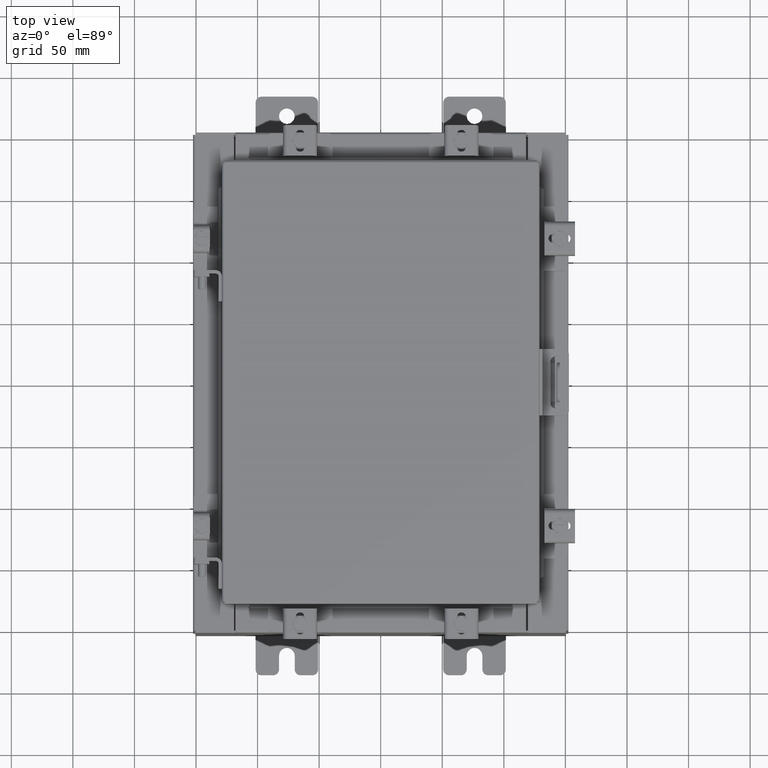
[diagram: clean part render]
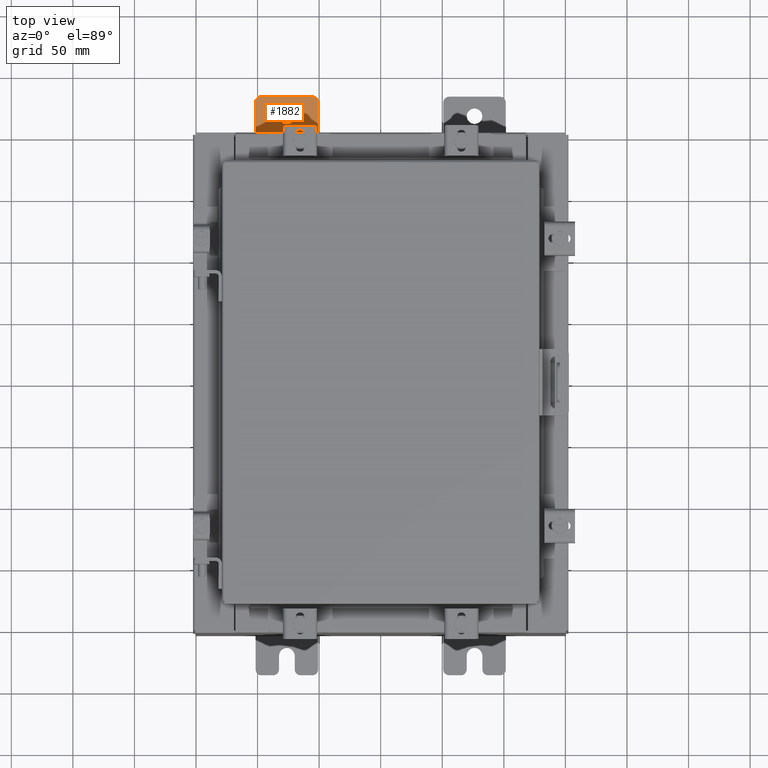
[diagram: same view with one face highlighted and labeled with its STEP entity id]
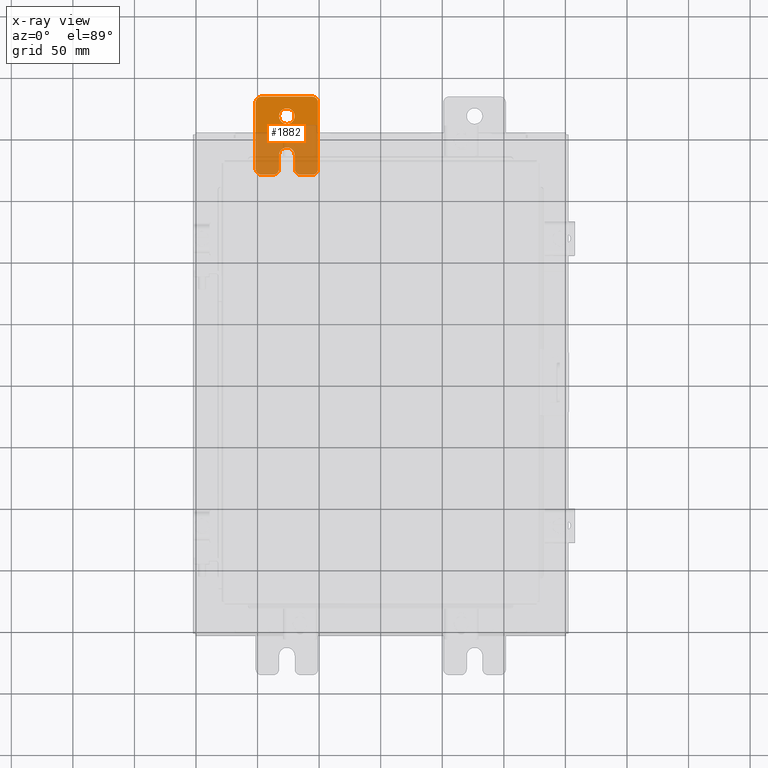
[diagram: x-ray of the same camera — body ghosted, the highlighted face saturated]
A machine part, top view. The second image highlights one B-rep face of the part: STEP entity #1882.
The next image is the same camera in x-ray: the body ghosted, the highlighted face saturated — about 57% of this face is hidden behind the body in this view.
In plain terms, the highlighted planar face has unit normal (0, 0, 1).
Its self-contained STEP definition (entity closure, byte-faithful):
#47 = AXIS2_PLACEMENT_3D ( 'NONE', #8749, #19966, #10348 ) ;
#404 = ORIENTED_EDGE ( 'NONE', *, *, #7744, .T. ) ;
#610 = CIRCLE ( 'NONE', #6672, 0.2499999999999999200 ) ;
#742 = DIRECTION ( 'NONE',  ( 1.000000000000000000, 0.0000000000000000000, 0.0000000000000000000 ) ) ;
#848 = CIRCLE ( 'NONE', #6494, 0.1900000000000011100 ) ;
#907 = CARTESIAN_POINT ( 'NONE',  ( 0.0000000000000000000, -0.6249999999999988900, 0.2500000000000003300 ) ) ;
#1045 = CARTESIAN_POINT ( 'NONE',  ( 0.0000000000000000000, -1.250000000000003300, 0.4400000000000018900 ) ) ;
#1309 = CARTESIAN_POINT ( 'NONE',  ( 0.0000000000000000000, -1.060000000000001200, 0.9999999999999986700 ) ) ;
#1472 = DIRECTION ( 'NONE',  ( 0.0000000000000000000, 0.0000000000000000000, -1.000000000000000000 ) ) ;
#1547 = VERTEX_POINT ( 'NONE', #19345 ) ;
#1882 = ADVANCED_FACE ( 'NONE', ( #3434, #5958 ), #5212, .T. ) ;
#2114 = CARTESIAN_POINT ( 'NONE',  ( 5.463695987328526400E-016, -0.6249999999999988900, 0.0000000000000000000 ) ) ;
#2206 = VECTOR ( 'NONE', #8424, 39.37007874015748100 ) ;
#2332 = ORIENTED_EDGE ( 'NONE', *, *, #11609, .T. ) ;
#2343 = VECTOR ( 'NONE', #16814, 39.37007874015748100 ) ;
#2369 = CARTESIAN_POINT ( 'NONE',  ( 0.0000000000000000000, 1.059999999999993600, -0.8100000000000091600 ) ) ;
#2448 = CARTESIAN_POINT ( 'NONE',  ( 0.0000000000000000000, 1.059999999999996900, 0.9999999999999953400 ) ) ;
#2712 = LINE ( 'NONE', #11639, #2206 ) ;
#2760 = VERTEX_POINT ( 'NONE', #2448 ) ;
#2954 = EDGE_CURVE ( 'NONE', #4619, #18920, #15194, .T. ) ;
#3048 = ORIENTED_EDGE ( 'NONE', *, *, #9752, .T. ) ;
#3069 = EDGE_CURVE ( 'NONE', #5762, #1547, #848, .T. ) ;
#3208 = VECTOR ( 'NONE', #12875, 39.37007874015748100 ) ;
#3434 = FACE_BOUND ( 'NONE', #20641, .T. ) ;
#3554 = CARTESIAN_POINT ( 'NONE',  ( 5.334616169627887800E-016, 0.6249999999999988900, -0.2499999999999999200 ) ) ;
#3740 = CARTESIAN_POINT ( 'NONE',  ( 0.0000000000000000000, -1.250000000000005600, -0.8100000000000047200 ) ) ;
#3742 = DIRECTION ( 'NONE',  ( -6.523827964459551700E-016, -1.000000000000000000, 0.0000000000000000000 ) ) ;
#3816 = DIRECTION ( 'NONE',  ( 1.000000000000000000, 0.0000000000000000000, -5.163192708025532000E-017 ) ) ;
#3998 = DIRECTION ( 'NONE',  ( 0.0000000000000000000, 0.0000000000000000000, -1.000000000000000000 ) ) ;
#4137 = CIRCLE ( 'NONE', #13386, 0.1900000000000011100 ) ;
#4174 = VERTEX_POINT ( 'NONE', #1309 ) ;
#4217 = CARTESIAN_POINT ( 'NONE',  ( 0.0000000000000000000, 0.0000000000000000000, 0.0000000000000000000 ) ) ;
#4356 = ORIENTED_EDGE ( 'NONE', *, *, #18794, .F. ) ;
#4536 = CARTESIAN_POINT ( 'NONE',  ( 5.592775805029164100E-016, 0.6249999999999988900, 0.2499999999999999200 ) ) ;
#4619 = VERTEX_POINT ( 'NONE', #16146 ) ;
#4633 = CARTESIAN_POINT ( 'NONE',  ( 0.0000000000000000000, -1.250000000000005600, -1.000000000000006200 ) ) ;
#4908 = EDGE_CURVE ( 'NONE', #18133, #17133, #19437, .T. ) ;
#5212 = PLANE ( 'NONE',  #9966 ) ;
#5307 = VERTEX_POINT ( 'NONE', #1045 ) ;
#5419 = VERTEX_POINT ( 'NONE', #12535 ) ;
#5537 = CIRCLE ( 'NONE', #8729, 0.1900000000000011400 ) ;
#5540 = DIRECTION ( 'NONE',  ( 1.000000000000000000, 0.0000000000000000000, 0.0000000000000000000 ) ) ;
#5691 = CARTESIAN_POINT ( 'NONE',  ( 0.0000000000000000000, -1.250000000000002200, 0.9999999999999992200 ) ) ;
#5759 = DIRECTION ( 'NONE',  ( 0.0000000000000000000, 0.0000000000000000000, -1.000000000000000000 ) ) ;
#5762 = VERTEX_POINT ( 'NONE', #3740 ) ;
#5810 = CARTESIAN_POINT ( 'NONE',  ( 0.0000000000000000000, -1.250000000000002200, 0.9999999999999992200 ) ) ;
#5908 = CIRCLE ( 'NONE', #9406, 0.1900000000000011100 ) ;
#5958 = FACE_OUTER_BOUND ( 'NONE', #12251, .T. ) ;
#6031 = DIRECTION ( 'NONE',  ( 1.000000000000000000, 0.0000000000000000000, 0.0000000000000000000 ) ) ;
#6071 = ORIENTED_EDGE ( 'NONE', *, *, #3069, .T. ) ;
#6494 = AXIS2_PLACEMENT_3D ( 'NONE', #15627, #6031, #17248 ) ;
#6599 = CARTESIAN_POINT ( 'NONE',  ( 0.0000000000000000000, 1.249999999999994700, -0.8100000000000091600 ) ) ;
#6627 = VERTEX_POINT ( 'NONE', #7524 ) ;
#6641 = LINE ( 'NONE', #13610, #2343 ) ;
#6672 = AXIS2_PLACEMENT_3D ( 'NONE', #2114, #13356, #3742 ) ;
#6899 = ORIENTED_EDGE ( 'NONE', *, *, #15236, .T. ) ;
#6903 = VECTOR ( 'NONE', #7300, 39.37007874015748100 ) ;
#7052 = AXIS2_PLACEMENT_3D ( 'NONE', #20755, #11154, #1472 ) ;
#7300 = DIRECTION ( 'NONE',  ( 0.0000000000000000000, -1.639108796198553600E-015, -1.000000000000000000 ) ) ;
#7433 = DIRECTION ( 'NONE',  ( 0.0000000000000000000, -1.639108796198553600E-015, -1.000000000000000000 ) ) ;
#7495 = LINE ( 'NONE', #9648, #3208 ) ;
#7524 = CARTESIAN_POINT ( 'NONE',  ( 0.0000000000000000000, 1.059999999999993600, -1.000000000000010000 ) ) ;
#7546 = CARTESIAN_POINT ( 'NONE',  ( 5.463695987328526400E-016, -0.6249999999999988900, -0.2499999999999998100 ) ) ;
#7744 = EDGE_CURVE ( 'NONE', #14922, #13142, #16573, .T. ) ;
#7926 = ORIENTED_EDGE ( 'NONE', *, *, #2954, .T. ) ;
#7974 = CIRCLE ( 'NONE', #7052, 0.1900000000000011100 ) ;
#8049 = ORIENTED_EDGE ( 'NONE', *, *, #4908, .F. ) ;
#8243 = ORIENTED_EDGE ( 'NONE', *, *, #8577, .T. ) ;
#8277 = CARTESIAN_POINT ( 'NONE',  ( 0.0000000000000000000, -1.060000000000002300, 0.4400000000000018900 ) ) ;
#8297 = VECTOR ( 'NONE', #7433, 39.37007874015748100 ) ;
#8424 = DIRECTION ( 'NONE',  ( 0.0000000000000000000, 1.639108796198553600E-015, 1.000000000000000000 ) ) ;
#8514 = CARTESIAN_POINT ( 'NONE',  ( 5.463695987328526400E-016, 0.6249999999999988900, 0.0000000000000000000 ) ) ;
#8577 = EDGE_CURVE ( 'NONE', #13853, #5307, #17792, .T. ) ;
#8729 = AXIS2_PLACEMENT_3D ( 'NONE', #8277, #19466, #9856 ) ;
#8749 = CARTESIAN_POINT ( 'NONE',  ( 0.0000000000000000000, -1.060000000000003400, -0.4400000000000007800 ) ) ;
#8978 = EDGE_CURVE ( 'NONE', #16763, #5419, #2712, .T. ) ;
#9406 = AXIS2_PLACEMENT_3D ( 'NONE', #10417, #742, #12042 ) ;
#9455 = EDGE_CURVE ( 'NONE', #18994, #14922, #7495, .T. ) ;
#9493 = DIRECTION ( 'NONE',  ( 0.0000000000000000000, 1.000000000000000000, -1.639108796198558100E-015 ) ) ;
#9556 = DIRECTION ( 'NONE',  ( 6.556435184794182400E-016, 1.000000000000000000, 0.0000000000000000000 ) ) ;
#9648 = CARTESIAN_POINT ( 'NONE',  ( 5.463695987328526400E-016, -0.6249999999999988900, -0.2499999999999992500 ) ) ;
#9752 = EDGE_CURVE ( 'NONE', #1547, #6627, #15754, .T. ) ;
#9856 = DIRECTION ( 'NONE',  ( 0.0000000000000000000, 0.0000000000000000000, -1.000000000000000000 ) ) ;
#9966 = AXIS2_PLACEMENT_3D ( 'NONE', #4217, #5540, #5759 ) ;
#10104 = DIRECTION ( 'NONE',  ( -5.163192708025533800E-017, 0.0000000000000000000, -1.000000000000000000 ) ) ;
#10348 = DIRECTION ( 'NONE',  ( 0.0000000000000000000, 0.0000000000000000000, -1.000000000000000000 ) ) ;
#10417 = CARTESIAN_POINT ( 'NONE',  ( 0.0000000000000000000, 1.059999999999995800, 0.8099999999999938400 ) ) ;
#10658 = ORIENTED_EDGE ( 'NONE', *, *, #14987, .T. ) ;
#10914 = ORIENTED_EDGE ( 'NONE', *, *, #15974, .T. ) ;
#10960 = VECTOR ( 'NONE', #9556, 39.37007874015748100 ) ;
#11154 = DIRECTION ( 'NONE',  ( 1.000000000000000000, 0.0000000000000000000, 0.0000000000000000000 ) ) ;
#11323 = EDGE_CURVE ( 'NONE', #4174, #13853, #7974, .T. ) ;
#11609 = EDGE_CURVE ( 'NONE', #18920, #18994, #610, .T. ) ;
#11639 = CARTESIAN_POINT ( 'NONE',  ( 0.0000000000000000000, 1.249999999999994700, -1.000000000000010000 ) ) ;
#12042 = DIRECTION ( 'NONE',  ( 0.0000000000000000000, 0.0000000000000000000, -1.000000000000000000 ) ) ;
#12251 = EDGE_LOOP ( 'NONE', ( #10914, #19374, #8243, #10658, #7926, #2332, #16898, #404, #17020, #6071, #3048, #15686, #20586, #6899 ) ) ;
#12416 = EDGE_CURVE ( 'NONE', #6627, #16763, #4137, .T. ) ;
#12452 = EDGE_CURVE ( 'NONE', #13142, #5762, #19201, .T. ) ;
#12535 = CARTESIAN_POINT ( 'NONE',  ( 0.0000000000000000000, 1.249999999999997800, 0.8099999999999932800 ) ) ;
#12875 = DIRECTION ( 'NONE',  ( -6.556435184794182400E-016, -1.000000000000000000, -1.639108796198545600E-016 ) ) ;
#12970 = CARTESIAN_POINT ( 'NONE',  ( 0.0000000000000000000, -1.250000000000002200, 0.8099999999999981700 ) ) ;
#13142 = VERTEX_POINT ( 'NONE', #18996 ) ;
#13356 = DIRECTION ( 'NONE',  ( -1.000000000000000000, 6.523827964459549700E-016, 5.163192708025532000E-017 ) ) ;
#13386 = AXIS2_PLACEMENT_3D ( 'NONE', #2369, #13619, #3998 ) ;
#13444 = CARTESIAN_POINT ( 'NONE',  ( 5.463695987328526400E-016, 0.6249999999999988900, 0.0000000000000000000 ) ) ;
#13610 = CARTESIAN_POINT ( 'NONE',  ( 0.0000000000000000000, 1.249999999999997800, 0.9999999999999953400 ) ) ;
#13619 = DIRECTION ( 'NONE',  ( 1.000000000000000000, 0.0000000000000000000, 0.0000000000000000000 ) ) ;
#13853 = VERTEX_POINT ( 'NONE', #12970 ) ;
#14922 = VERTEX_POINT ( 'NONE', #17625 ) ;
#14987 = EDGE_CURVE ( 'NONE', #5307, #4619, #5537, .T. ) ;
#15041 = DIRECTION ( 'NONE',  ( -5.163192708025533800E-017, 0.0000000000000000000, -1.000000000000000000 ) ) ;
#15194 = LINE ( 'NONE', #20790, #10960 ) ;
#15236 = EDGE_CURVE ( 'NONE', #5419, #2760, #5908, .T. ) ;
#15245 = VECTOR ( 'NONE', #9493, 39.37007874015748100 ) ;
#15554 = CIRCLE ( 'NONE', #18049, 0.2499999999999999200 ) ;
#15627 = CARTESIAN_POINT ( 'NONE',  ( 0.0000000000000000000, -1.060000000000004500, -0.8100000000000047200 ) ) ;
#15686 = ORIENTED_EDGE ( 'NONE', *, *, #12416, .T. ) ;
#15754 = LINE ( 'NONE', #4633, #15245 ) ;
#15974 = EDGE_CURVE ( 'NONE', #2760, #4174, #6641, .T. ) ;
#16146 = CARTESIAN_POINT ( 'NONE',  ( 0.0000000000000000000, -1.060000000000002300, 0.2500000000000003300 ) ) ;
#16573 = CIRCLE ( 'NONE', #47, 0.1900000000000011100 ) ;
#16763 = VERTEX_POINT ( 'NONE', #6599 ) ;
#16814 = DIRECTION ( 'NONE',  ( 0.0000000000000000000, -1.000000000000000000, 1.639108796198558100E-015 ) ) ;
#16898 = ORIENTED_EDGE ( 'NONE', *, *, #9455, .T. ) ;
#17020 = ORIENTED_EDGE ( 'NONE', *, *, #12452, .T. ) ;
#17133 = VERTEX_POINT ( 'NONE', #4536 ) ;
#17248 = DIRECTION ( 'NONE',  ( 0.0000000000000000000, 0.0000000000000000000, -1.000000000000000000 ) ) ;
#17625 = CARTESIAN_POINT ( 'NONE',  ( 0.0000000000000000000, -1.060000000000003400, -0.2499999999999992500 ) ) ;
#17792 = LINE ( 'NONE', #5810, #8297 ) ;
#18049 = AXIS2_PLACEMENT_3D ( 'NONE', #13444, #3816, #15041 ) ;
#18133 = VERTEX_POINT ( 'NONE', #3554 ) ;
#18794 = EDGE_CURVE ( 'NONE', #17133, #18133, #15554, .T. ) ;
#18920 = VERTEX_POINT ( 'NONE', #907 ) ;
#18994 = VERTEX_POINT ( 'NONE', #7546 ) ;
#18996 = CARTESIAN_POINT ( 'NONE',  ( 0.0000000000000000000, -1.250000000000004400, -0.4400000000000002200 ) ) ;
#19201 = LINE ( 'NONE', #5691, #6903 ) ;
#19345 = CARTESIAN_POINT ( 'NONE',  ( 0.0000000000000000000, -1.060000000000004500, -1.000000000000006900 ) ) ;
#19374 = ORIENTED_EDGE ( 'NONE', *, *, #11323, .T. ) ;
#19437 = CIRCLE ( 'NONE', #19549, 0.2499999999999999200 ) ;
#19466 = DIRECTION ( 'NONE',  ( 1.000000000000000000, 0.0000000000000000000, 0.0000000000000000000 ) ) ;
#19549 = AXIS2_PLACEMENT_3D ( 'NONE', #8514, #19713, #10104 ) ;
#19713 = DIRECTION ( 'NONE',  ( 1.000000000000000000, 0.0000000000000000000, -5.163192708025532000E-017 ) ) ;
#19966 = DIRECTION ( 'NONE',  ( 1.000000000000000000, 0.0000000000000000000, 0.0000000000000000000 ) ) ;
#20586 = ORIENTED_EDGE ( 'NONE', *, *, #8978, .T. ) ;
#20641 = EDGE_LOOP ( 'NONE', ( #8049, #4356 ) ) ;
#20755 = CARTESIAN_POINT ( 'NONE',  ( 0.0000000000000000000, -1.060000000000001200, 0.8099999999999976100 ) ) ;
#20790 = CARTESIAN_POINT ( 'NONE',  ( 0.0000000000000000000, -1.250000000000004400, 0.2500000000000003300 ) ) ;